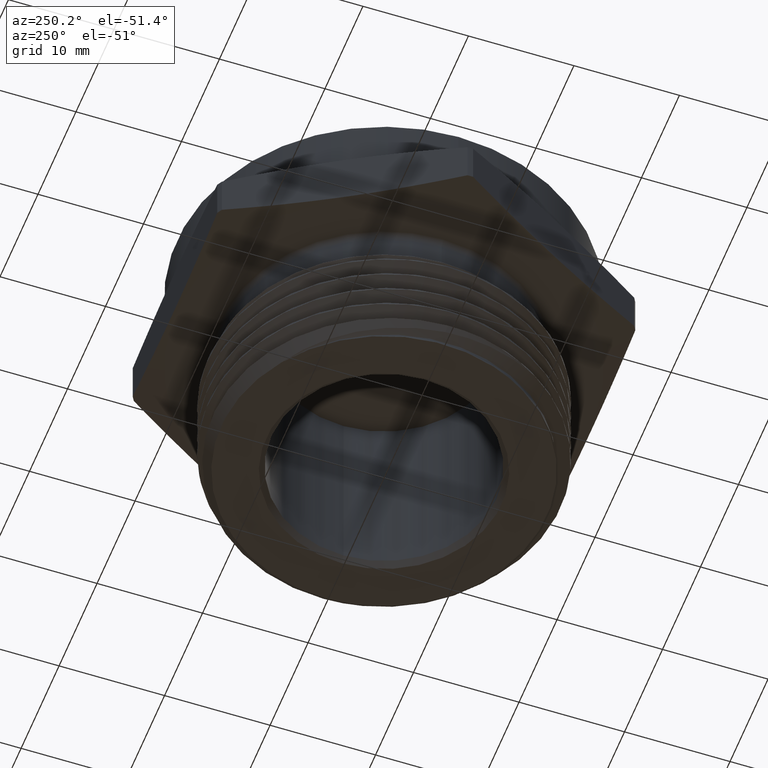
[diagram: clean part render]
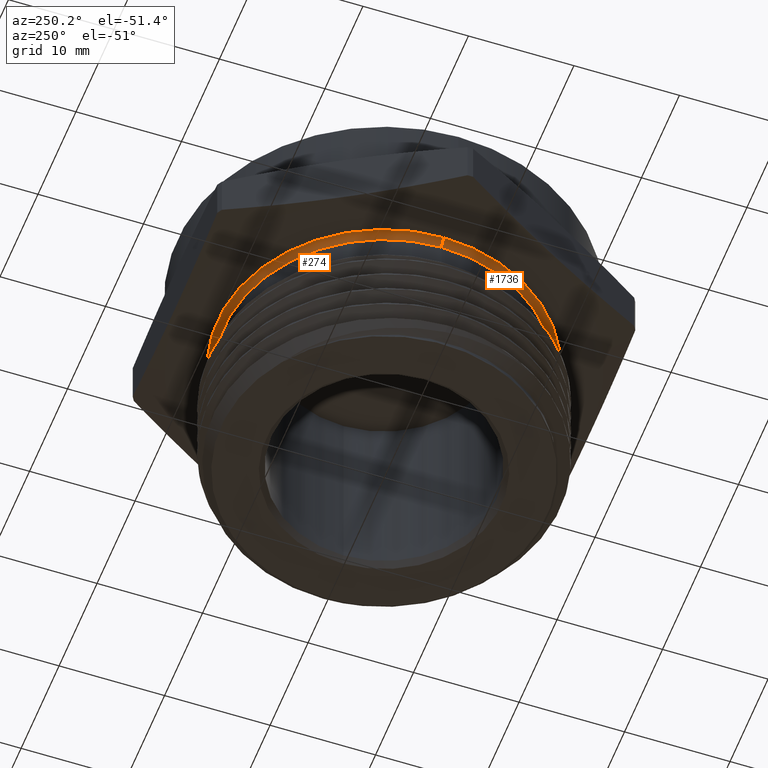
[diagram: same view with one multi-face feature highlighted, each face labeled with its STEP entity id]
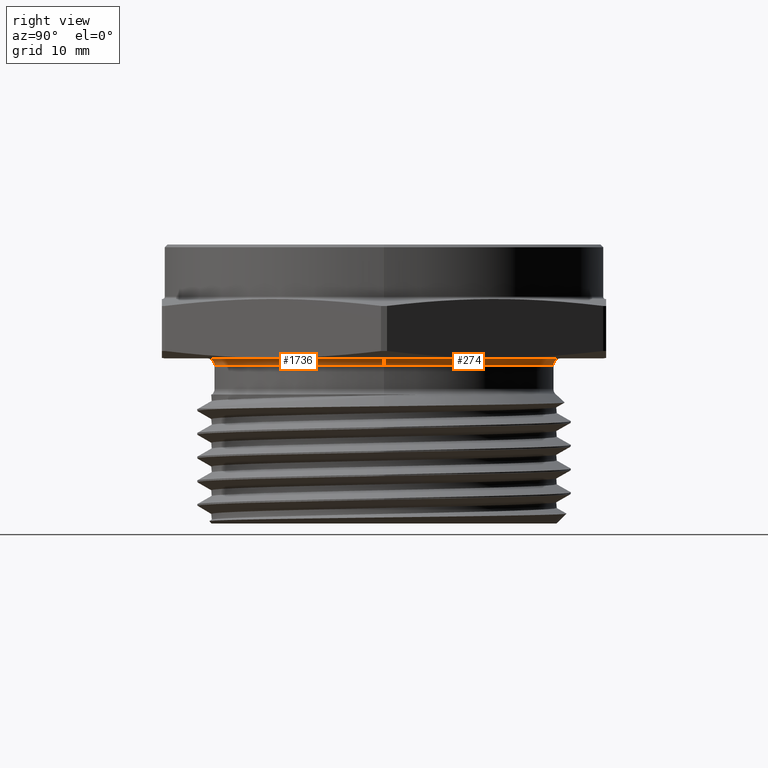
[diagram: same view with one multi-face feature highlighted, each face labeled with its STEP entity id]
A machine part, auxiliary view. The highlighted faces form ONE feature: a constant-radius fillet chain: 2 tangent blend faces with common blend radius 0.635 mm. The faces share edges in the B-rep.
A second angle (right view) of the same feature is appended — it is thin or edge-on in the first view.
Their STEP definitions:
[1] entity #274 (Torus):
#177 = EDGE_LOOP ( 'NONE', ( #265, #266, #267, #268 ) ) ;
#265 = ORIENTED_EDGE ( 'NONE', *, *, #1878, .F. ) ;
#266 = ORIENTED_EDGE ( 'NONE', *, *, #1943, .F. ) ;
#267 = ORIENTED_EDGE ( 'NONE', *, *, #1876, .T. ) ;
#268 = ORIENTED_EDGE ( 'NONE', *, *, #1873, .T. ) ;
#274 = ADVANCED_FACE ( 'NONE', ( #2127 ), #2128, .F. ) ;
#803 = CARTESIAN_POINT ( 'NONE',  ( -0.6224999999999999400, 7.623426324692271000E-017, -3.628235616585349700E-017 ) ) ;
#810 = CARTESIAN_POINT ( 'NONE',  ( 0.6224999999999999400, 0.0000000000000000000, -3.628235616585349700E-017 ) ) ;
#816 = CARTESIAN_POINT ( 'NONE',  ( 0.5975000000000000300, 0.0000000000000000000, -0.02500000000000002900 ) ) ;
#846 = CARTESIAN_POINT ( 'NONE',  ( -0.5975000000000000300, 7.317264624905434600E-017, -0.02500000000000002900 ) ) ;
#1873 = EDGE_CURVE ( 'NONE', #2062, #2092, #2264, .T. ) ;
#1876 = EDGE_CURVE ( 'NONE', #2055, #2062, #2269, .T. ) ;
#1878 = EDGE_CURVE ( 'NONE', #2046, #2092, #2267, .T. ) ;
#1943 = EDGE_CURVE ( 'NONE', #2055, #2046, #2332, .T. ) ;
#2001 = AXIS2_PLACEMENT_3D ( 'NONE', #3214, #3219, #3208 ) ;
#2046 = VERTEX_POINT ( 'NONE', #803 ) ;
#2055 = VERTEX_POINT ( 'NONE', #810 ) ;
#2062 = VERTEX_POINT ( 'NONE', #816 ) ;
#2092 = VERTEX_POINT ( 'NONE', #846 ) ;
#2127 = FACE_OUTER_BOUND ( 'NONE', #177, .T. ) ;
#2128 = TOROIDAL_SURFACE ( 'NONE', #2001, 0.6224999999999999400, 0.02499999999999997400 ) ;
#2264 = CIRCLE ( 'NONE', #2463, 0.5975000000000000300 ) ;
#2267 = CIRCLE ( 'NONE', #2467, 0.02500000000000000500 ) ;
#2269 = CIRCLE ( 'NONE', #2465, 0.02499999999999997400 ) ;
#2332 = CIRCLE ( 'NONE', #2488, 0.6224999999999999400 ) ;
#2463 = AXIS2_PLACEMENT_3D ( 'NONE', #2605, #2606, #2607 ) ;
#2465 = AXIS2_PLACEMENT_3D ( 'NONE', #2611, #2612, #2613 ) ;
#2467 = AXIS2_PLACEMENT_3D ( 'NONE', #2618, #2619, #2620 ) ;
#2488 = AXIS2_PLACEMENT_3D ( 'NONE', #2972, #2973, #2974 ) ;
#2605 = CARTESIAN_POINT ( 'NONE',  ( 0.0000000000000000000, 0.0000000000000000000, -0.02500000000000002900 ) ) ;
#2606 = DIRECTION ( 'NONE',  ( -0.0000000000000000000, -0.0000000000000000000, 1.000000000000000000 ) ) ;
#2607 = DIRECTION ( 'NONE',  ( 1.000000000000000000, 0.0000000000000000000, 0.0000000000000000000 ) ) ;
#2611 = CARTESIAN_POINT ( 'NONE',  ( 0.6224999999999999400, 0.0000000000000000000, -0.02500000000000002200 ) ) ;
#2612 = DIRECTION ( 'NONE',  ( 0.0000000000000000000, -1.000000000000000000, 0.0000000000000000000 ) ) ;
#2613 = DIRECTION ( 'NONE',  ( 0.0000000000000000000, 0.0000000000000000000, -1.000000000000000000 ) ) ;
#2618 = CARTESIAN_POINT ( 'NONE',  ( -0.6224999999999999400, 7.623426324692272200E-017, -0.02500000000000002200 ) ) ;
#2619 = DIRECTION ( 'NONE',  ( 1.224646799147353200E-016, 1.000000000000000000, 0.0000000000000000000 ) ) ;
#2620 = DIRECTION ( 'NONE',  ( -1.000000000000000000, 1.224646799147351700E-016, 0.0000000000000000000 ) ) ;
#2972 = CARTESIAN_POINT ( 'NONE',  ( 0.0000000000000000000, 0.0000000000000000000, -2.134256245050205600E-017 ) ) ;
#2973 = DIRECTION ( 'NONE',  ( -0.0000000000000000000, -0.0000000000000000000, 1.000000000000000000 ) ) ;
#2974 = DIRECTION ( 'NONE',  ( 1.000000000000000000, 0.0000000000000000000, 0.0000000000000000000 ) ) ;
#3208 = DIRECTION ( 'NONE',  ( 1.000000000000000000, 0.0000000000000000000, 0.0000000000000000000 ) ) ;
#3214 = CARTESIAN_POINT ( 'NONE',  ( 0.0000000000000000000, 0.0000000000000000000, -0.02500000000000002200 ) ) ;
#3219 = DIRECTION ( 'NONE',  ( -0.0000000000000000000, -0.0000000000000000000, 1.000000000000000000 ) ) ;
[2] entity #1736 (Torus):
#144 = EDGE_LOOP ( 'NONE', ( #235, #236, #237, #238 ) ) ;
#235 = ORIENTED_EDGE ( 'NONE', *, *, #1879, .F. ) ;
#236 = ORIENTED_EDGE ( 'NONE', *, *, #1878, .T. ) ;
#237 = ORIENTED_EDGE ( 'NONE', *, *, #1877, .T. ) ;
#238 = ORIENTED_EDGE ( 'NONE', *, *, #1876, .F. ) ;
#803 = CARTESIAN_POINT ( 'NONE',  ( -0.6224999999999999400, 7.623426324692271000E-017, -3.628235616585349700E-017 ) ) ;
#810 = CARTESIAN_POINT ( 'NONE',  ( 0.6224999999999999400, 0.0000000000000000000, -3.628235616585349700E-017 ) ) ;
#816 = CARTESIAN_POINT ( 'NONE',  ( 0.5975000000000000300, 0.0000000000000000000, -0.02500000000000002900 ) ) ;
#846 = CARTESIAN_POINT ( 'NONE',  ( -0.5975000000000000300, 7.317264624905434600E-017, -0.02500000000000002900 ) ) ;
#1245 = CARTESIAN_POINT ( 'NONE',  ( 0.0000000000000000000, 0.0000000000000000000, -0.02500000000000002200 ) ) ;
#1246 = DIRECTION ( 'NONE',  ( -0.0000000000000000000, -0.0000000000000000000, 1.000000000000000000 ) ) ;
#1250 = DIRECTION ( 'NONE',  ( 1.000000000000000000, 0.0000000000000000000, 0.0000000000000000000 ) ) ;
#1736 = ADVANCED_FACE ( 'NONE', ( #2152 ), #2153, .F. ) ;
#1876 = EDGE_CURVE ( 'NONE', #2055, #2062, #2269, .T. ) ;
#1877 = EDGE_CURVE ( 'NONE', #2092, #2062, #2270, .T. ) ;
#1878 = EDGE_CURVE ( 'NONE', #2046, #2092, #2267, .T. ) ;
#1879 = EDGE_CURVE ( 'NONE', #2046, #2055, #2272, .T. ) ;
#2046 = VERTEX_POINT ( 'NONE', #803 ) ;
#2055 = VERTEX_POINT ( 'NONE', #810 ) ;
#2062 = VERTEX_POINT ( 'NONE', #816 ) ;
#2092 = VERTEX_POINT ( 'NONE', #846 ) ;
#2152 = FACE_OUTER_BOUND ( 'NONE', #144, .T. ) ;
#2153 = TOROIDAL_SURFACE ( 'NONE', #2402, 0.6224999999999999400, 0.02499999999999997400 ) ;
#2267 = CIRCLE ( 'NONE', #2467, 0.02500000000000000500 ) ;
#2269 = CIRCLE ( 'NONE', #2465, 0.02499999999999997400 ) ;
#2270 = CIRCLE ( 'NONE', #2466, 0.5975000000000000300 ) ;
#2272 = CIRCLE ( 'NONE', #2468, 0.6224999999999999400 ) ;
#2402 = AXIS2_PLACEMENT_3D ( 'NONE', #1245, #1246, #1250 ) ;
#2465 = AXIS2_PLACEMENT_3D ( 'NONE', #2611, #2612, #2613 ) ;
#2466 = AXIS2_PLACEMENT_3D ( 'NONE', #2614, #2615, #2616 ) ;
#2467 = AXIS2_PLACEMENT_3D ( 'NONE', #2618, #2619, #2620 ) ;
#2468 = AXIS2_PLACEMENT_3D ( 'NONE', #2622, #2623, #2624 ) ;
#2611 = CARTESIAN_POINT ( 'NONE',  ( 0.6224999999999999400, 0.0000000000000000000, -0.02500000000000002200 ) ) ;
#2612 = DIRECTION ( 'NONE',  ( 0.0000000000000000000, -1.000000000000000000, 0.0000000000000000000 ) ) ;
#2613 = DIRECTION ( 'NONE',  ( 0.0000000000000000000, 0.0000000000000000000, -1.000000000000000000 ) ) ;
#2614 = CARTESIAN_POINT ( 'NONE',  ( 0.0000000000000000000, 0.0000000000000000000, -0.02500000000000002900 ) ) ;
#2615 = DIRECTION ( 'NONE',  ( -0.0000000000000000000, -0.0000000000000000000, 1.000000000000000000 ) ) ;
#2616 = DIRECTION ( 'NONE',  ( 1.000000000000000000, 0.0000000000000000000, 0.0000000000000000000 ) ) ;
#2618 = CARTESIAN_POINT ( 'NONE',  ( -0.6224999999999999400, 7.623426324692272200E-017, -0.02500000000000002200 ) ) ;
#2619 = DIRECTION ( 'NONE',  ( 1.224646799147353200E-016, 1.000000000000000000, 0.0000000000000000000 ) ) ;
#2620 = DIRECTION ( 'NONE',  ( -1.000000000000000000, 1.224646799147351700E-016, 0.0000000000000000000 ) ) ;
#2622 = CARTESIAN_POINT ( 'NONE',  ( 0.0000000000000000000, 0.0000000000000000000, -2.134256245050205600E-017 ) ) ;
#2623 = DIRECTION ( 'NONE',  ( -0.0000000000000000000, -0.0000000000000000000, 1.000000000000000000 ) ) ;
#2624 = DIRECTION ( 'NONE',  ( 1.000000000000000000, 0.0000000000000000000, 0.0000000000000000000 ) ) ;